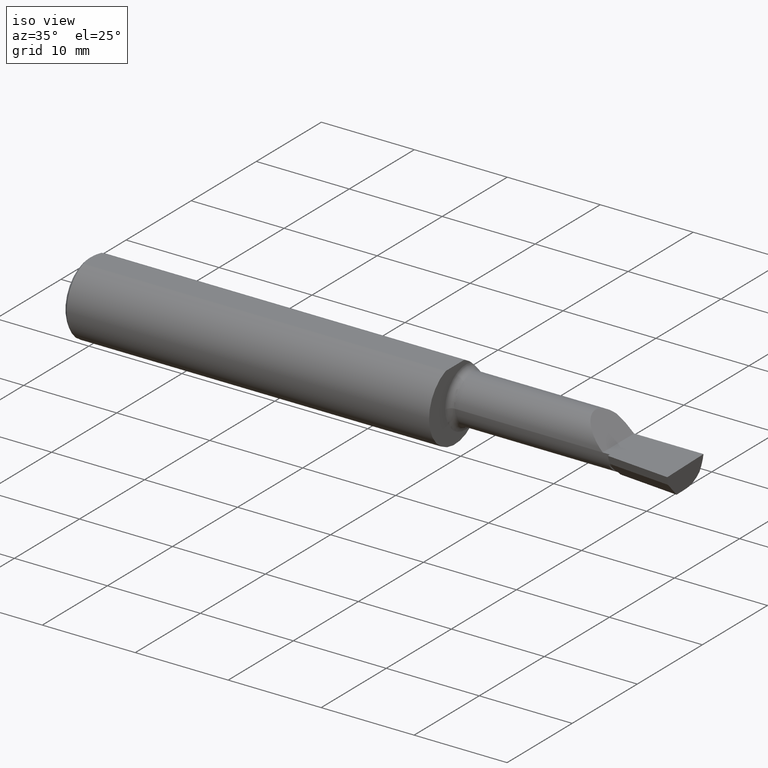
[diagram: clean part render]
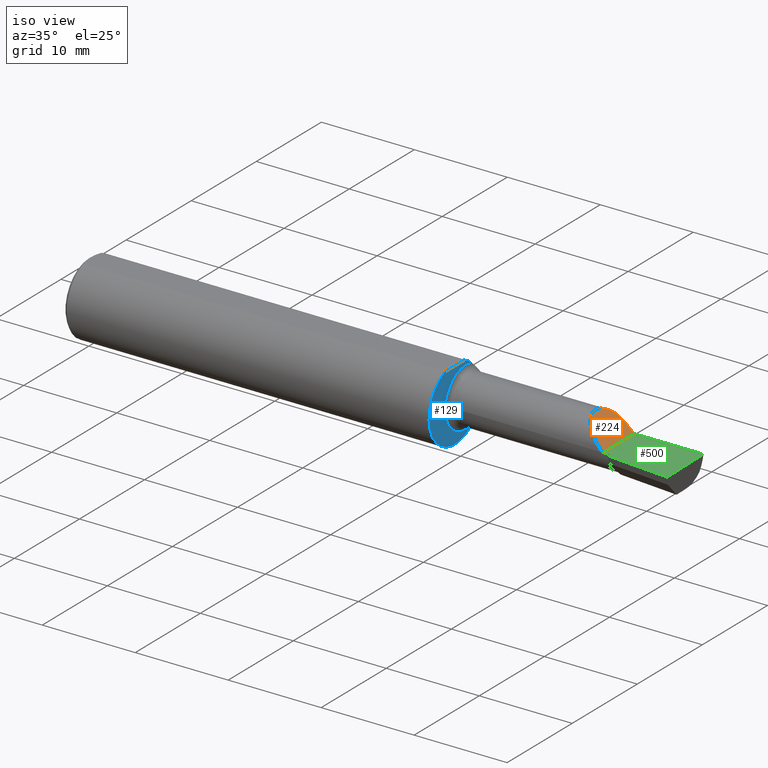
[diagram: same view with three faces highlighted in distinct colors, each labeled with its STEP entity id]
A machine part, iso view with three faces highlighted in distinct colors.
Their STEP definitions:

[orange] entity #224 — the highlighted planar face has unit normal (-0.7071, 0, -0.7071).
#19 = PLANE ( 'NONE',  #273 ) ;
#27 = CARTESIAN_POINT ( 'NONE',  ( 2.050862765435913726, 0.07006795998724148211, 0.1491372345640848418 ) ) ;
#46 = EDGE_CURVE ( 'NONE', #194, #256, #694, .T. ) ;
#71 = CARTESIAN_POINT ( 'NONE',  ( 2.089191818750234741, -0.03390000000000004121, 0.1108081812497644647 ) ) ;
#90 = CARTESIAN_POINT ( 'NONE',  ( 2.200000000000000178, -0.2500000000000000555, 9.797174393178826150E-17 ) ) ;
#127 = CARTESIAN_POINT ( 'NONE',  ( 2.200000000000000178, -0.2500000000000000555, 9.797174393178826150E-17 ) ) ;
#177 =( BOUNDED_CURVE ( )  B_SPLINE_CURVE ( 3, ( #548, #27, #71, #292 ),
 .UNSPECIFIED., .F., .T. ) 
 B_SPLINE_CURVE_WITH_KNOTS ( ( 4, 4 ),
 ( 5.418794317430681851, 7.853981633974482790 ),
 .UNSPECIFIED. ) 
 CURVE ( )  GEOMETRIC_REPRESENTATION_ITEM ( )  RATIONAL_B_SPLINE_CURVE ( ( 1.000000000000000000, 0.5639363621110593527, 0.5639363621110593527, 1.000000000000000000 ) ) 
 REPRESENTATION_ITEM ( '' )  );
#182 = ORIENTED_EDGE ( 'NONE', *, *, #46, .F. ) ;
#194 = VERTEX_POINT ( 'NONE', #656 ) ;
#206 = EDGE_CURVE ( 'NONE', #194, #280, #177, .T. ) ;
#224 = ADVANCED_FACE ( 'NONE', ( #279 ), #19, .F. ) ;
#232 = DIRECTION ( 'NONE',  ( -0.7071067811865507924, 0.000000000000000000, 0.7071067811865442421 ) ) ;
#256 = VERTEX_POINT ( 'NONE', #478 ) ;
#273 = AXIS2_PLACEMENT_3D ( 'NONE', #127, #618, #232 ) ;
#279 = FACE_OUTER_BOUND ( 'NONE', #681, .T. ) ;
#280 = VERTEX_POINT ( 'NONE', #574 ) ;
#292 = CARTESIAN_POINT ( 'NONE',  ( 2.200000000000000178, -0.03390000000000021468, 9.797174393178826150E-17 ) ) ;
#309 = EDGE_CURVE ( 'NONE', #280, #256, #691, .T. ) ;
#314 = ORIENTED_EDGE ( 'NONE', *, *, #206, .T. ) ;
#336 = CARTESIAN_POINT ( 'NONE',  ( 2.135154559332283597, 0.1419939393939393113, 0.06484544066771606718 ) ) ;
#369 = VECTOR ( 'NONE', #676, 39.37007874015748143 ) ;
#435 = ORIENTED_EDGE ( 'NONE', *, *, #309, .T. ) ;
#478 = CARTESIAN_POINT ( 'NONE',  ( 2.200000000000000178, 0.1560999999999997667, 9.797174393178826150E-17 ) ) ;
#494 = CARTESIAN_POINT ( 'NONE',  ( 2.177537118629004453, 0.1560999999999999888, 0.02246288137099531138 ) ) ;
#546 = CARTESIAN_POINT ( 'NONE',  ( 2.155587570325277369, 0.1513252362624134539, 0.04441242967472209396 ) ) ;
#548 = CARTESIAN_POINT ( 'NONE',  ( 2.135154559332283597, 0.1419939393939393113, 0.06484544066771606718 ) ) ;
#574 = CARTESIAN_POINT ( 'NONE',  ( 2.200000000000000178, -0.03390000000000021468, 9.797174393178826150E-17 ) ) ;
#618 = DIRECTION ( 'NONE',  ( -0.7071067811865442421, 0.000000000000000000, -0.7071067811865507924 ) ) ;
#652 = CARTESIAN_POINT ( 'NONE',  ( 2.200000000000000178, 0.1560999999999997667, 9.797174393178826150E-17 ) ) ;
#656 = CARTESIAN_POINT ( 'NONE',  ( 2.135154559332283597, 0.1419939393939393113, 0.06484544066771606718 ) ) ;
#676 = DIRECTION ( 'NONE',  ( -0.000000000000000000, 1.000000000000000000, -0.000000000000000000 ) ) ;
#681 = EDGE_LOOP ( 'NONE', ( #182, #314, #435 ) ) ;
#691 = LINE ( 'NONE', #90, #369 ) ;
#694 =( BOUNDED_CURVE ( )  B_SPLINE_CURVE ( 3, ( #336, #546, #494, #652 ),
 .UNSPECIFIED., .F., .F. ) 
 B_SPLINE_CURVE_WITH_KNOTS ( ( 4, 4 ),
 ( 1.142403264486529624, 1.570796326794896336 ),
 .UNSPECIFIED. ) 
 CURVE ( )  GEOMETRIC_REPRESENTATION_ITEM ( )  RATIONAL_B_SPLINE_CURVE ( ( 1.000000000000000000, 0.9847649979006014576, 0.9847649979006014576, 1.000000000000000000 ) ) 
 REPRESENTATION_ITEM ( '' )  );

[blue] entity #129 — the highlighted planar face has unit normal (-1, 0, 0).
#13 = EDGE_CURVE ( 'NONE', #674, #371, #94, .T. ) ;
#43 = CIRCLE ( 'NONE', #265, 0.1249000000000000943 ) ;
#45 = VERTEX_POINT ( 'NONE', #215 ) ;
#66 = CARTESIAN_POINT ( 'NONE',  ( 1.550000000000000044, -0.05890000000000009811, 0.000000000000000000 ) ) ;
#72 = ORIENTED_EDGE ( 'NONE', *, *, #408, .T. ) ;
#73 = LINE ( 'NONE', #413, #417 ) ;
#78 = DIRECTION ( 'NONE',  ( -3.414809992080329023E-18, -1.000000000000000000, 0.000000000000000000 ) ) ;
#80 = DIRECTION ( 'NONE',  ( 3.414809992080329023E-18, 1.000000000000000000, -1.656870447394628111E-16 ) ) ;
#85 = DIRECTION ( 'NONE',  ( -1.000000000000000000, 3.414809992080329023E-18, -0.000000000000000000 ) ) ;
#86 = CARTESIAN_POINT ( 'NONE',  ( 1.550000000000000044, 0.09941818181818157241, 0.1203463132961163223 ) ) ;
#94 = CIRCLE ( 'NONE', #527, 0.1560999999999999888 ) ;
#102 = EDGE_CURVE ( 'NONE', #45, #614, #460, .T. ) ;
#109 = ORIENTED_EDGE ( 'NONE', *, *, #541, .T. ) ;
#119 = DIRECTION ( 'NONE',  ( -1.000000000000000000, 3.414809992080329023E-18, 0.000000000000000000 ) ) ;
#129 = ADVANCED_FACE ( 'NONE', ( #661 ), #459, .F. ) ;
#165 = CARTESIAN_POINT ( 'NONE',  ( 1.550000000000000044, 0.000000000000000000, 0.000000000000000000 ) ) ;
#167 = DIRECTION ( 'NONE',  ( 0.000000000000000000, -1.000000000000000000, 0.000000000000000000 ) ) ;
#168 = AXIS2_PLACEMENT_3D ( 'NONE', #261, #395, #445 ) ;
#171 = DIRECTION ( 'NONE',  ( -1.000000000000000000, 3.414809992080329023E-18, -0.000000000000000000 ) ) ;
#215 = CARTESIAN_POINT ( 'NONE',  ( 1.550000000000000044, 0.09941818181818157241, -0.1203463132961163223 ) ) ;
#217 = DIRECTION ( 'NONE',  ( 0.000000000000000000, -1.000000000000000000, 0.000000000000000000 ) ) ;
#250 = DIRECTION ( 'NONE',  ( 0.000000000000000000, -1.000000000000000000, 0.000000000000000000 ) ) ;
#251 = VERTEX_POINT ( 'NONE', #683 ) ;
#261 = CARTESIAN_POINT ( 'NONE',  ( 1.550000000000000044, 0.06599999999999998923, 0.000000000000000000 ) ) ;
#265 = AXIS2_PLACEMENT_3D ( 'NONE', #519, #85, #250 ) ;
#344 = CARTESIAN_POINT ( 'NONE',  ( 1.550000000000000044, 0.05497272050753902739, 0.1460999999999999521 ) ) ;
#371 = VERTEX_POINT ( 'NONE', #86 ) ;
#378 = ORIENTED_EDGE ( 'NONE', *, *, #102, .F. ) ;
#395 = DIRECTION ( 'NONE',  ( -1.000000000000000000, 3.414809992080329023E-18, -0.000000000000000000 ) ) ;
#407 = ORIENTED_EDGE ( 'NONE', *, *, #13, .F. ) ;
#408 = EDGE_CURVE ( 'NONE', #45, #251, #640, .T. ) ;
#413 = CARTESIAN_POINT ( 'NONE',  ( 1.550000000000000044, 0.2061000000000000332, 0.1460999999999999521 ) ) ;
#417 = VECTOR ( 'NONE', #80, 39.37007874015748143 ) ;
#445 = DIRECTION ( 'NONE',  ( 0.000000000000000000, -1.000000000000000000, 0.000000000000000000 ) ) ;
#459 = PLANE ( 'NONE',  #648 ) ;
#460 = CIRCLE ( 'NONE', #616, 0.1560999999999999888 ) ;
#479 = ORIENTED_EDGE ( 'NONE', *, *, #657, .F. ) ;
#496 = CARTESIAN_POINT ( 'NONE',  ( 1.550000000000000044, 0.000000000000000000, 0.000000000000000000 ) ) ;
#519 = CARTESIAN_POINT ( 'NONE',  ( 1.550000000000000044, 0.06599999999999998923, 0.000000000000000000 ) ) ;
#522 = CARTESIAN_POINT ( 'NONE',  ( 1.550000000000000044, -0.05497272050753900657, 0.1461000000000000076 ) ) ;
#527 = AXIS2_PLACEMENT_3D ( 'NONE', #165, #592, #217 ) ;
#541 = EDGE_CURVE ( 'NONE', #251, #371, #43, .T. ) ;
#592 = DIRECTION ( 'NONE',  ( -1.000000000000000000, 3.414809992080329023E-18, -0.000000000000000000 ) ) ;
#614 = VERTEX_POINT ( 'NONE', #522 ) ;
#616 = AXIS2_PLACEMENT_3D ( 'NONE', #496, #171, #167 ) ;
#640 = CIRCLE ( 'NONE', #168, 0.1249000000000000943 ) ;
#648 = AXIS2_PLACEMENT_3D ( 'NONE', #66, #119, #78 ) ;
#657 = EDGE_CURVE ( 'NONE', #614, #674, #73, .T. ) ;
#661 = FACE_OUTER_BOUND ( 'NONE', #666, .T. ) ;
#666 = EDGE_LOOP ( 'NONE', ( #72, #109, #407, #479, #378 ) ) ;
#674 = VERTEX_POINT ( 'NONE', #344 ) ;
#683 = CARTESIAN_POINT ( 'NONE',  ( 1.550000000000000044, -0.05890000000000010505, 0.000000000000000000 ) ) ;

[green] entity #500 — the highlighted planar face has unit normal (-0, 0, -1).
#11 = FACE_OUTER_BOUND ( 'NONE', #685, .T. ) ;
#15 = CARTESIAN_POINT ( 'NONE',  ( 2.229999999999999982, -0.03390000000000001346, 0.000000000000000000 ) ) ;
#32 = LINE ( 'NONE', #629, #227 ) ;
#44 = DIRECTION ( 'NONE',  ( 0.9953961983671787417, -0.09584575252022420333, -9.831095531899268478E-17 ) ) ;
#90 = CARTESIAN_POINT ( 'NONE',  ( 2.200000000000000178, -0.2500000000000000555, 9.797174393178826150E-17 ) ) ;
#114 = DIRECTION ( 'NONE',  ( -9.891848030060559526E-17, 0.000000000000000000, -1.000000000000000000 ) ) ;
#115 = LINE ( 'NONE', #226, #603 ) ;
#116 = VERTEX_POINT ( 'NONE', #15 ) ;
#135 = CARTESIAN_POINT ( 'NONE',  ( 2.504767759937919891, -0.2498722748537978433, 6.782458027410943008E-17 ) ) ;
#138 = VECTOR ( 'NONE', #144, 39.37007874015748143 ) ;
#144 = DIRECTION ( 'NONE',  ( -0.02677973311239052051, 0.9996413586354002678, 2.612414329932748356E-18 ) ) ;
#151 = LINE ( 'NONE', #135, #138 ) ;
#163 = PLANE ( 'NONE',  #380 ) ;
#170 = EDGE_CURVE ( 'NONE', #280, #116, #115, .T. ) ;
#186 = EDGE_CURVE ( 'NONE', #116, #461, #505, .T. ) ;
#191 = VERTEX_POINT ( 'NONE', #223 ) ;
#222 = CARTESIAN_POINT ( 'NONE',  ( 2.500000000000000000, -0.2500000000000000555, 6.829619984160658046E-17 ) ) ;
#223 = CARTESIAN_POINT ( 'NONE',  ( 2.493892030279779792, 0.1560999999999997945, 6.888552856243478599E-17 ) ) ;
#226 = CARTESIAN_POINT ( 'NONE',  ( -3.411395182087937181E-19, -0.03390000000000002039, 3.155924005931204823E-16 ) ) ;
#227 = VECTOR ( 'NONE', #44, 39.37007874015748854 ) ;
#252 = VECTOR ( 'NONE', #508, 39.37007874015748143 ) ;
#256 = VERTEX_POINT ( 'NONE', #478 ) ;
#260 = EDGE_CURVE ( 'NONE', #256, #191, #363, .T. ) ;
#280 = VERTEX_POINT ( 'NONE', #574 ) ;
#286 = EDGE_CURVE ( 'NONE', #506, #191, #151, .T. ) ;
#309 = EDGE_CURVE ( 'NONE', #280, #256, #691, .T. ) ;
#317 = ORIENTED_EDGE ( 'NONE', *, *, #170, .T. ) ;
#338 = EDGE_CURVE ( 'NONE', #461, #506, #32, .T. ) ;
#363 = LINE ( 'NONE', #687, #446 ) ;
#369 = VECTOR ( 'NONE', #676, 39.37007874015748143 ) ;
#380 = AXIS2_PLACEMENT_3D ( 'NONE', #222, #114, #386 ) ;
#386 = DIRECTION ( 'NONE',  ( -1.000000000000000000, 0.000000000000000000, 9.891848030060559526E-17 ) ) ;
#423 = DIRECTION ( 'NONE',  ( 1.000000000000000000, 0.000000000000000000, 0.000000000000000000 ) ) ;
#443 = CARTESIAN_POINT ( 'NONE',  ( 2.500000000000000000, -0.07190000000000008884, 1.024442997624098707E-16 ) ) ;
#444 = CARTESIAN_POINT ( 'NONE',  ( 2.229999999999999982, -0.2500000000000000555, 9.500418952277011559E-17 ) ) ;
#446 = VECTOR ( 'NONE', #423, 39.37007874015748143 ) ;
#461 = VERTEX_POINT ( 'NONE', #643 ) ;
#478 = CARTESIAN_POINT ( 'NONE',  ( 2.200000000000000178, 0.1560999999999997667, 9.797174393178826150E-17 ) ) ;
#500 = ADVANCED_FACE ( 'NONE', ( #11 ), #163, .F. ) ;
#505 = LINE ( 'NONE', #444, #252 ) ;
#506 = VERTEX_POINT ( 'NONE', #443 ) ;
#508 = DIRECTION ( 'NONE',  ( -3.414809992080329408E-18, -1.000000000000000000, 3.377878149319092424E-34 ) ) ;
#521 = ORIENTED_EDGE ( 'NONE', *, *, #260, .F. ) ;
#530 = ORIENTED_EDGE ( 'NONE', *, *, #338, .T. ) ;
#551 = DIRECTION ( 'NONE',  ( 1.000000000000000000, -3.414809992080329023E-18, 0.000000000000000000 ) ) ;
#552 = ORIENTED_EDGE ( 'NONE', *, *, #309, .F. ) ;
#573 = ORIENTED_EDGE ( 'NONE', *, *, #286, .T. ) ;
#574 = CARTESIAN_POINT ( 'NONE',  ( 2.200000000000000178, -0.03390000000000021468, 9.797174393178826150E-17 ) ) ;
#603 = VECTOR ( 'NONE', #551, 39.37007874015748143 ) ;
#629 = CARTESIAN_POINT ( 'NONE',  ( 2.516991541038281710, -0.07353609931398560895, 6.661542242413441755E-17 ) ) ;
#633 = ORIENTED_EDGE ( 'NONE', *, *, #186, .T. ) ;
#643 = CARTESIAN_POINT ( 'NONE',  ( 2.229999999999999982, -0.04590195698666457019, 9.497440290473414864E-17 ) ) ;
#676 = DIRECTION ( 'NONE',  ( -0.000000000000000000, 1.000000000000000000, -0.000000000000000000 ) ) ;
#685 = EDGE_LOOP ( 'NONE', ( #530, #573, #521, #552, #317, #633 ) ) ;
#687 = CARTESIAN_POINT ( 'NONE',  ( 3.121792066109142165E-32, 0.1560999999999999333, 3.155924005931204823E-16 ) ) ;
#691 = LINE ( 'NONE', #90, #369 ) ;